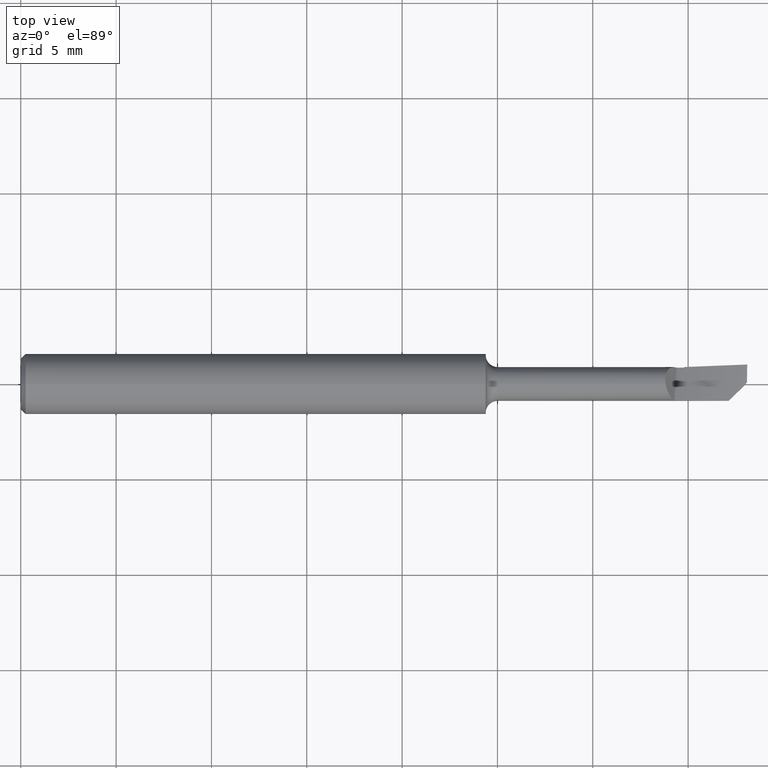
[diagram: clean part render]
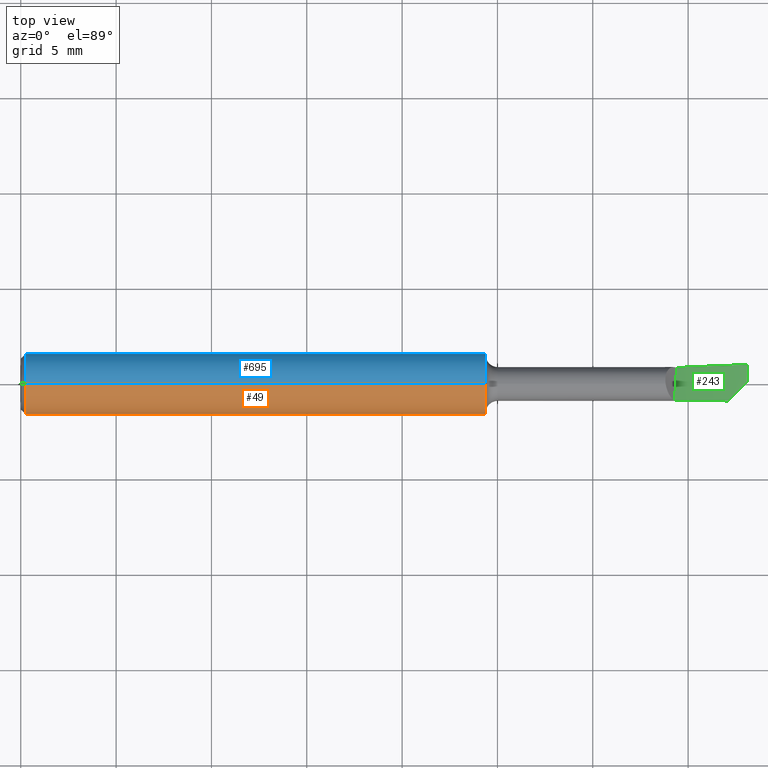
[diagram: same view with three faces highlighted in distinct colors, each labeled with its STEP entity id]
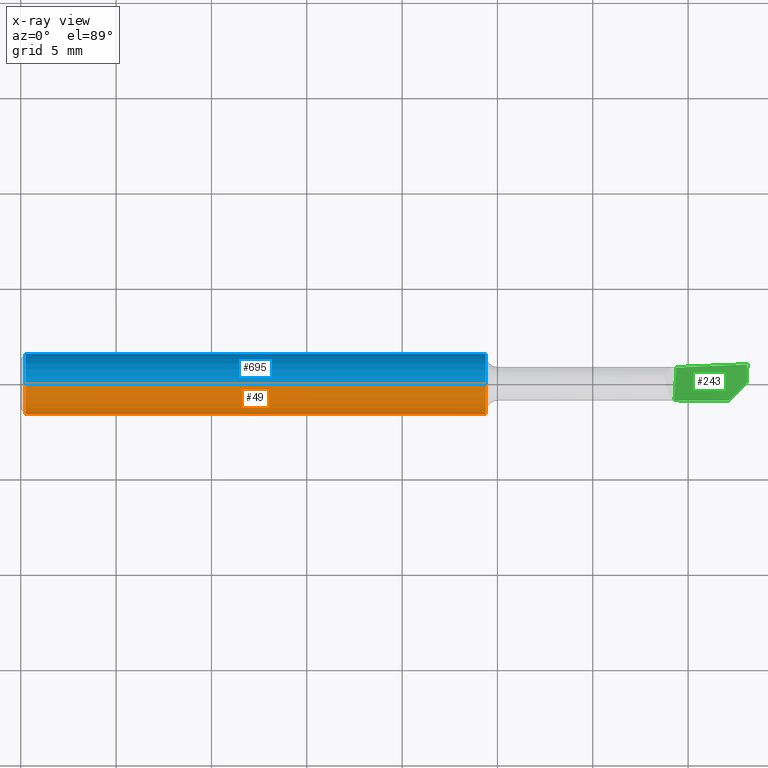
[diagram: x-ray of the same camera — body ghosted, the three highlighted faces saturated]
A machine part, top view with three faces highlighted in distinct colors.
The next image is the same camera in x-ray (body ghosted, the three faces saturated) — at least one of them is partly hidden behind the body in this view.
Their STEP definitions:

[orange] entity #49 — the highlighted cylindrical surface (edge-blend (fillet) strip) has radius 1.5837 mm, axis along (-1, -0, -0).
#2 = ORIENTED_EDGE ( 'NONE', *, *, #596, .F. ) ;
#15 = CARTESIAN_POINT ( 'NONE',  ( 0.000000000000000000, 0.000000000000000000, 0.06234999999999997489 ) ) ;
#44 = CIRCLE ( 'NONE', #525, 0.06235000000000000264 ) ;
#49 = ADVANCED_FACE ( 'NONE', ( #251 ), #247, .T. ) ;
#64 = DIRECTION ( 'NONE',  ( -1.000000000000000000, -0.000000000000000000, -0.000000000000000000 ) ) ;
#67 = VERTEX_POINT ( 'NONE', #658 ) ;
#99 = DIRECTION ( 'NONE',  ( -1.000000000000000000, -0.000000000000000000, -0.000000000000000000 ) ) ;
#110 = CIRCLE ( 'NONE', #340, 0.06234999999999997489 ) ;
#115 = LINE ( 'NONE', #15, #554 ) ;
#156 = DIRECTION ( 'NONE',  ( 0.000000000000000000, 0.000000000000000000, -1.000000000000000000 ) ) ;
#173 = DIRECTION ( 'NONE',  ( -1.000000000000000000, -0.000000000000000000, -0.000000000000000000 ) ) ;
#214 = DIRECTION ( 'NONE',  ( 1.000000000000000000, 0.000000000000000000, 0.000000000000000000 ) ) ;
#219 = AXIS2_PLACEMENT_3D ( 'NONE', #294, #361, #349 ) ;
#228 = VERTEX_POINT ( 'NONE', #439 ) ;
#234 = CARTESIAN_POINT ( 'NONE',  ( 0.9600000000000004086, 0.000000000000000000, 0.06234999999999997489 ) ) ;
#247 = CYLINDRICAL_SURFACE ( 'NONE', #219, 0.06234999999999997489 ) ;
#251 = FACE_OUTER_BOUND ( 'NONE', #583, .T. ) ;
#294 = CARTESIAN_POINT ( 'NONE',  ( 0.000000000000000000, 0.000000000000000000, 0.000000000000000000 ) ) ;
#298 = DIRECTION ( 'NONE',  ( 0.000000000000000000, 0.000000000000000000, 1.000000000000000000 ) ) ;
#307 = CARTESIAN_POINT ( 'NONE',  ( 0.9600000000000004086, 7.635672792683743590E-18, -0.06234999999999997489 ) ) ;
#313 = ORIENTED_EDGE ( 'NONE', *, *, #380, .F. ) ;
#340 = AXIS2_PLACEMENT_3D ( 'NONE', #576, #214, #156 ) ;
#349 = DIRECTION ( 'NONE',  ( 0.000000000000000000, 0.000000000000000000, 1.000000000000000000 ) ) ;
#361 = DIRECTION ( 'NONE',  ( -1.000000000000000000, -0.000000000000000000, -0.000000000000000000 ) ) ;
#372 = ORIENTED_EDGE ( 'NONE', *, *, #492, .T. ) ;
#380 = EDGE_CURVE ( 'NONE', #522, #646, #110, .T. ) ;
#439 = CARTESIAN_POINT ( 'NONE',  ( 0.01000000000000000021, 0.000000000000000000, 0.06235000000000000264 ) ) ;
#464 = CARTESIAN_POINT ( 'NONE',  ( 0.01000000000000000021, 0.000000000000000000, 0.000000000000000000 ) ) ;
#470 = EDGE_CURVE ( 'NONE', #67, #228, #44, .T. ) ;
#492 = EDGE_CURVE ( 'NONE', #522, #228, #115, .T. ) ;
#522 = VERTEX_POINT ( 'NONE', #234 ) ;
#525 = AXIS2_PLACEMENT_3D ( 'NONE', #464, #64, #298 ) ;
#554 = VECTOR ( 'NONE', #173, 39.37007874015748143 ) ;
#574 = ORIENTED_EDGE ( 'NONE', *, *, #470, .F. ) ;
#576 = CARTESIAN_POINT ( 'NONE',  ( 0.9600000000000004086, 0.000000000000000000, 0.000000000000000000 ) ) ;
#583 = EDGE_LOOP ( 'NONE', ( #2, #313, #372, #574 ) ) ;
#589 = VECTOR ( 'NONE', #99, 39.37007874015748143 ) ;
#596 = EDGE_CURVE ( 'NONE', #646, #67, #694, .T. ) ;
#626 = CARTESIAN_POINT ( 'NONE',  ( 0.000000000000000000, 7.635672792683743590E-18, -0.06234999999999997489 ) ) ;
#646 = VERTEX_POINT ( 'NONE', #307 ) ;
#658 = CARTESIAN_POINT ( 'NONE',  ( 0.01000000000000000021, 7.635672792683748212E-18, -0.06235000000000000264 ) ) ;
#694 = LINE ( 'NONE', #626, #589 ) ;

[blue] entity #695 — the highlighted cylindrical surface (edge-blend (fillet) strip) has radius 1.5837 mm, axis along (-1, -0, -0).
#3 = EDGE_CURVE ( 'NONE', #228, #67, #132, .T. ) ;
#15 = CARTESIAN_POINT ( 'NONE',  ( 0.000000000000000000, 0.000000000000000000, 0.06234999999999997489 ) ) ;
#22 = CYLINDRICAL_SURFACE ( 'NONE', #134, 0.06234999999999997489 ) ;
#24 = DIRECTION ( 'NONE',  ( -1.000000000000000000, -0.000000000000000000, -0.000000000000000000 ) ) ;
#33 = AXIS2_PLACEMENT_3D ( 'NONE', #645, #538, #417 ) ;
#67 = VERTEX_POINT ( 'NONE', #658 ) ;
#99 = DIRECTION ( 'NONE',  ( -1.000000000000000000, -0.000000000000000000, -0.000000000000000000 ) ) ;
#115 = LINE ( 'NONE', #15, #554 ) ;
#124 = DIRECTION ( 'NONE',  ( 0.000000000000000000, 0.000000000000000000, 1.000000000000000000 ) ) ;
#132 = CIRCLE ( 'NONE', #463, 0.06235000000000000264 ) ;
#134 = AXIS2_PLACEMENT_3D ( 'NONE', #428, #483, #124 ) ;
#173 = DIRECTION ( 'NONE',  ( -1.000000000000000000, -0.000000000000000000, -0.000000000000000000 ) ) ;
#186 = CARTESIAN_POINT ( 'NONE',  ( 0.01000000000000000021, 0.000000000000000000, 0.000000000000000000 ) ) ;
#199 = ORIENTED_EDGE ( 'NONE', *, *, #3, .F. ) ;
#212 = ORIENTED_EDGE ( 'NONE', *, *, #596, .T. ) ;
#228 = VERTEX_POINT ( 'NONE', #439 ) ;
#234 = CARTESIAN_POINT ( 'NONE',  ( 0.9600000000000004086, 0.000000000000000000, 0.06234999999999997489 ) ) ;
#239 = FACE_OUTER_BOUND ( 'NONE', #738, .T. ) ;
#307 = CARTESIAN_POINT ( 'NONE',  ( 0.9600000000000004086, 7.635672792683743590E-18, -0.06234999999999997489 ) ) ;
#350 = CIRCLE ( 'NONE', #33, 0.06234999999999997489 ) ;
#417 = DIRECTION ( 'NONE',  ( 0.000000000000000000, 0.000000000000000000, -1.000000000000000000 ) ) ;
#421 = DIRECTION ( 'NONE',  ( 0.000000000000000000, 0.000000000000000000, 1.000000000000000000 ) ) ;
#428 = CARTESIAN_POINT ( 'NONE',  ( 0.000000000000000000, 0.000000000000000000, 0.000000000000000000 ) ) ;
#439 = CARTESIAN_POINT ( 'NONE',  ( 0.01000000000000000021, 0.000000000000000000, 0.06235000000000000264 ) ) ;
#444 = EDGE_CURVE ( 'NONE', #646, #522, #350, .T. ) ;
#463 = AXIS2_PLACEMENT_3D ( 'NONE', #186, #24, #421 ) ;
#483 = DIRECTION ( 'NONE',  ( -1.000000000000000000, -0.000000000000000000, -0.000000000000000000 ) ) ;
#486 = ORIENTED_EDGE ( 'NONE', *, *, #492, .F. ) ;
#492 = EDGE_CURVE ( 'NONE', #522, #228, #115, .T. ) ;
#522 = VERTEX_POINT ( 'NONE', #234 ) ;
#538 = DIRECTION ( 'NONE',  ( 1.000000000000000000, 0.000000000000000000, 0.000000000000000000 ) ) ;
#553 = ORIENTED_EDGE ( 'NONE', *, *, #444, .F. ) ;
#554 = VECTOR ( 'NONE', #173, 39.37007874015748143 ) ;
#589 = VECTOR ( 'NONE', #99, 39.37007874015748143 ) ;
#596 = EDGE_CURVE ( 'NONE', #646, #67, #694, .T. ) ;
#626 = CARTESIAN_POINT ( 'NONE',  ( 0.000000000000000000, 7.635672792683743590E-18, -0.06234999999999997489 ) ) ;
#645 = CARTESIAN_POINT ( 'NONE',  ( 0.9600000000000004086, 0.000000000000000000, 0.000000000000000000 ) ) ;
#646 = VERTEX_POINT ( 'NONE', #307 ) ;
#658 = CARTESIAN_POINT ( 'NONE',  ( 0.01000000000000000021, 7.635672792683748212E-18, -0.06235000000000000264 ) ) ;
#694 = LINE ( 'NONE', #626, #589 ) ;
#695 = ADVANCED_FACE ( 'NONE', ( #239 ), #22, .T. ) ;
#738 = EDGE_LOOP ( 'NONE', ( #553, #212, #199, #486 ) ) ;

[green] entity #243 — the highlighted face is a freeform B-spline surface patch.
#1 = CARTESIAN_POINT ( 'NONE',  ( 1.030555555555556779, 0.08733709819635533667, -0.07154979553626174271 ) ) ;
#4 = CARTESIAN_POINT ( 'NONE',  ( 1.499593452604395916, 0.01547239693689903516, -0.001549944727832604664 ) ) ;
#21 =( BOUNDED_CURVE ( )  B_SPLINE_CURVE ( 2, ( #159, #433, #676 ),
 .UNSPECIFIED., .F., .F. ) 
 B_SPLINE_CURVE_WITH_KNOTS ( ( 3, 3 ),
 ( 0.08301568989664878662, 0.3192027755319414850 ),
 .UNSPECIFIED. ) 
 CURVE ( )  GEOMETRIC_REPRESENTATION_ITEM ( )  RATIONAL_B_SPLINE_CURVE ( ( 0.9831666040570180565, 0.9771742139515711134, 0.9796576210879086588 ) ) 
 REPRESENTATION_ITEM ( '' )  );
#23 = CARTESIAN_POINT ( 'NONE',  ( 1.369999999999999885, 0.03408878458359804881, -0.007934403922984695212 ) ) ;
#28 = CARTESIAN_POINT ( 'NONE',  ( 1.382638888888889195, -0.1101294798252469981, 0.03351111324270104191 ) ) ;
#32 = CARTESIAN_POINT ( 'NONE',  ( 1.500000000000000000, 0.03809952085550589312, -0.005958615904867708979 ) ) ;
#39 = CARTESIAN_POINT ( 'NONE',  ( 1.354108048174081924, 0.03386716557508867576, -0.008832615462564030739 ) ) ;
#45 = CARTESIAN_POINT ( 'NONE',  ( 1.349861253357378610, -0.03400066440094470094, 0.008303903918900398112 ) ) ;
#48 = CARTESIAN_POINT ( 'NONE',  ( 1.354108048174081924, 0.03386716557508867576, -0.008832615462564030739 ) ) ;
#52 = CARTESIAN_POINT ( 'NONE',  ( 1.466661693175757009, 0.03913291383499682696, -0.002304768244400256551 ) ) ;
#81 = CARTESIAN_POINT ( 'NONE',  ( 1.265277777777778390, -0.03747963110350861771, 0.009075012135846723116 ) ) ;
#88 = B_SPLINE_CURVE_WITH_KNOTS ( 'NONE', 3,
 ( #48, #327, #569, #45 ),
 .UNSPECIFIED., .F., .F.,
 ( 4, 4 ),
 ( 0.000000000000000000, 1.000000000000000000 ),
 .UNSPECIFIED. ) ;
#91 = ORIENTED_EDGE ( 'NONE', *, *, #287, .F. ) ;
#109 = ORIENTED_EDGE ( 'NONE', *, *, #670, .F. ) ;
#114 = ORIENTED_EDGE ( 'NONE', *, *, #236, .F. ) ;
#138 = CARTESIAN_POINT ( 'NONE',  ( 1.030555555555556779, -0.07154979553626167332, 0.08733709819635514238 ) ) ;
#159 = CARTESIAN_POINT ( 'NONE',  ( 1.461448099694315106, -0.03494965605692109539, 0.001876577070870324082 ) ) ;
#167 = CARTESIAN_POINT ( 'NONE',  ( 1.396666723524801146, 0.03636083483186582782, -0.006624574707342097482 ) ) ;
#180 = ORIENTED_EDGE ( 'NONE', *, *, #578, .F. ) ;
#183 = VERTEX_POINT ( 'NONE', #664 ) ;
#189 = CARTESIAN_POINT ( 'NONE',  ( 1.486742158958402671, -0.009655596792833632744, -0.001749392622931704487 ) ) ;
#202 = CARTESIAN_POINT ( 'NONE',  ( 1.370000000000000329, 0.03517872208053091782, -0.008094904954636267594 ) ) ;
#218 = VERTEX_POINT ( 'NONE', #490 ) ;
#221 = CARTESIAN_POINT ( 'NONE',  ( 1.474065921709957649, -0.02233183404127855182, -0.0005823287045652036096 ) ) ;
#224 =( BOUNDED_SURFACE ( )  B_SPLINE_SURFACE ( 3, 2, ( 
 ( #547, #28, #254, #668, #138 ),
 ( #371, #608, #81, #312, #551 ),
 ( #32, #455, #638, #749, #629 ),
 ( #579, #335, #634, #510, #1 ) ),
 .UNSPECIFIED., .F., .F., .T. ) 
 B_SPLINE_SURFACE_WITH_KNOTS ( ( 4, 4 ),
 ( 3, 2, 3 ),
 ( 0.000000000000000000, 1.000000000000000000 ),
 ( 0.000000000000000000, 0.5000000000000000000, 1.000000000000000000 ),
 .UNSPECIFIED. ) 
 GEOMETRIC_REPRESENTATION_ITEM ( )  RATIONAL_B_SPLINE_SURFACE ( (
 ( 1.000000000000000000, 0.9807852804032304306, 1.000000000000000000, 0.9807852804032304306, 1.000000000000000000),
 ( 0.9829519941216796619, 0.9640648471775461470, 0.9829519941216796619, 0.9640648471775461470, 0.9829519941216796619),
 ( 0.9829519941216796619, 0.9640648471775461470, 0.9829519941216796619, 0.9640648471775461470, 0.9829519941216796619),
 ( 1.000000000000000000, 0.9807852804032304306, 1.000000000000000000, 0.9807852804032304306, 1.000000000000000000) ) ) 
 REPRESENTATION_ITEM ( '' )  SURFACE ( )  );
#236 = EDGE_CURVE ( 'NONE', #324, #386, #280, .T. ) ;
#243 = ADVANCED_FACE ( 'NONE', ( #500 ), #224, .T. ) ;
#254 = CARTESIAN_POINT ( 'NONE',  ( 1.265277777777778390, -0.09952585216190767969, 0.05330803611170396167 ) ) ;
#263 = B_SPLINE_CURVE_WITH_KNOTS ( 'NONE', 3,
 ( #688, #696, #52, #344, #288, #513, #701, #167, #402, #582 ),
 .UNSPECIFIED., .F., .F.,
 ( 4, 3, 3, 4 ),
 ( 8.066190078706008124E-21, 0.001273923518814318485, 0.002292415743805619865, 0.003310949389055610308 ),
 .UNSPECIFIED. ) ;
#264 = CARTESIAN_POINT ( 'NONE',  ( 1.369999999999999885, 0.03408878458359804881, -0.007934403922984695212 ) ) ;
#266 = B_SPLINE_CURVE_WITH_KNOTS ( 'NONE', 3,
 ( #721, #189, #221, #454 ),
 .UNSPECIFIED., .F., .F.,
 ( 4, 4 ),
 ( 1.873122459272024966E-05, 0.001387652073038749814 ),
 .UNSPECIFIED. ) ;
#269 = EDGE_LOOP ( 'NONE', ( #91, #678, #180, #114, #724, #705, #109 ) ) ;
#279 = CARTESIAN_POINT ( 'NONE',  ( 1.369999999999999885, 0.03408878458359804881, -0.007934403922984695212 ) ) ;
#280 =( BOUNDED_CURVE ( )  B_SPLINE_CURVE ( 2, ( #39, #557, #264 ),
 .UNSPECIFIED., .F., .F. ) 
 B_SPLINE_CURVE_WITH_KNOTS ( ( 3, 3 ),
 ( 0.6897742532983571762, 0.7233326396390371560 ),
 .UNSPECIFIED. ) 
 CURVE ( )  GEOMETRIC_REPRESENTATION_ITEM ( )  RATIONAL_B_SPLINE_CURVE ( ( 0.9794810860655851492, 0.9791740060690131697, 0.9790380341072407733 ) ) 
 REPRESENTATION_ITEM ( '' )  );
#283 = CARTESIAN_POINT ( 'NONE',  ( 1.354108048174081924, 0.03386716557508867576, -0.008832615462564030739 ) ) ;
#285 =( BOUNDED_CURVE ( )  B_SPLINE_CURVE ( 3, ( #23, #449, #494, #202 ),
 .UNSPECIFIED., .F., .T. ) 
 B_SPLINE_CURVE_WITH_KNOTS ( ( 4, 4 ),
 ( 0.001949181480983788956, 0.001977093532277217607 ),
 .UNSPECIFIED. ) 
 CURVE ( )  GEOMETRIC_REPRESENTATION_ITEM ( )  RATIONAL_B_SPLINE_CURVE ( ( 0.9790380341072471015, 0.9790632316668498314, 0.9790888258379936149, 0.9791148166206784520 ) ) 
 REPRESENTATION_ITEM ( '' )  );
#287 = EDGE_CURVE ( 'NONE', #218, #384, #387, .T. ) ;
#288 = CARTESIAN_POINT ( 'NONE',  ( 1.436660461414476231, 0.03800200479332555697, -0.004230669184156183628 ) ) ;
#312 = CARTESIAN_POINT ( 'NONE',  ( 1.147916666666667584, -0.03567449895556822070, 0.01653017428716188966 ) ) ;
#321 = EDGE_CURVE ( 'NONE', #218, #693, #263, .T. ) ;
#324 = VERTEX_POINT ( 'NONE', #283 ) ;
#327 = CARTESIAN_POINT ( 'NONE',  ( 1.352702047875786517, 0.01086592668248290497, -0.004878510784421322133 ) ) ;
#332 = CARTESIAN_POINT ( 'NONE',  ( 1.500000000000000222, 0.04024999999999999412, 0.000000000000000000 ) ) ;
#335 = CARTESIAN_POINT ( 'NONE',  ( 1.382638888888889195, 0.1145705201747526103, -0.01118449570750796457 ) ) ;
#338 = CARTESIAN_POINT ( 'NONE',  ( 1.499477198303386771, 0.003079442552149252044, -0.001615932808704087465 ) ) ;
#344 = CARTESIAN_POINT ( 'NONE',  ( 1.449989669630438849, 0.03850445489969771262, -0.003375013161977272799 ) ) ;
#352 = EDGE_CURVE ( 'NONE', #324, #570, #88, .T. ) ;
#371 = CARTESIAN_POINT ( 'NONE',  ( 1.500000000000000000, -0.03809952085550569190, -0.005958615904867730663 ) ) ;
#384 = VERTEX_POINT ( 'NONE', #391 ) ;
#386 = VERTEX_POINT ( 'NONE', #279 ) ;
#387 = B_SPLINE_CURVE_WITH_KNOTS ( 'NONE', 3,
 ( #332, #400, #4, #338 ),
 .UNSPECIFIED., .F., .F.,
 ( 4, 4 ),
 ( 2.038322754542619080E-17, 0.0009443978812286317644 ),
 .UNSPECIFIED. ) ;
#391 = CARTESIAN_POINT ( 'NONE',  ( 1.499477198303386771, 0.003079442552149252044, -0.001615932808704087465 ) ) ;
#400 = CARTESIAN_POINT ( 'NONE',  ( 1.499767103822349013, 0.02786261215107890474, -0.001016319388732455200 ) ) ;
#402 = CARTESIAN_POINT ( 'NONE',  ( 1.383333748005017183, 0.03578078092830985768, -0.007376758440280316298 ) ) ;
#433 = CARTESIAN_POINT ( 'NONE',  ( 1.405854669175920391, -0.03477472758508969725, 0.005134471468053118659 ) ) ;
#449 = CARTESIAN_POINT ( 'NONE',  ( 1.370000000000000329, 0.03445204281607999047, -0.007988305219034576299 ) ) ;
#454 = CARTESIAN_POINT ( 'NONE',  ( 1.461448099694315106, -0.03494965605692109539, 0.001876577070870324082 ) ) ;
#455 = CARTESIAN_POINT ( 'NONE',  ( 1.382638888888889417, 0.03691427845956257031, -0.01353708179426704045 ) ) ;
#490 = CARTESIAN_POINT ( 'NONE',  ( 1.500000000000000222, 0.04024999999999999412, 0.000000000000000000 ) ) ;
#494 = CARTESIAN_POINT ( 'NONE',  ( 1.370000000000000329, 0.03481535546364707828, -0.008041805574109175958 ) ) ;
#500 = FACE_OUTER_BOUND ( 'NONE', #269, .T. ) ;
#510 = CARTESIAN_POINT ( 'NONE',  ( 1.147916666666667584, 0.1015692374120036462, -0.05417736657395505473 ) ) ;
#513 = CARTESIAN_POINT ( 'NONE',  ( 1.423330012478480677, 0.03747144258056701871, -0.005051535428668099507 ) ) ;
#547 = CARTESIAN_POINT ( 'NONE',  ( 1.500000000000000222, -0.1123499999999997279, 0.01116330876759652306 ) ) ;
#551 = CARTESIAN_POINT ( 'NONE',  ( 1.030555555555556557, -0.03115380726970435818, 0.02272705184406837234 ) ) ;
#557 = CARTESIAN_POINT ( 'NONE',  ( 1.362050427833697563, 0.03398391115976232002, -0.008384974323531014379 ) ) ;
#569 = CARTESIAN_POINT ( 'NONE',  ( 1.351296441970193163, -0.01187945877796104180, 0.0008640750039218874018 ) ) ;
#570 = VERTEX_POINT ( 'NONE', #729 ) ;
#578 = EDGE_CURVE ( 'NONE', #386, #693, #285, .T. ) ;
#579 = CARTESIAN_POINT ( 'NONE',  ( 1.500000000000000222, 0.1123499999999998944, 0.01116330876759659071 ) ) ;
#582 = CARTESIAN_POINT ( 'NONE',  ( 1.370000000000000329, 0.03517872208053091782, -0.008094904954636267594 ) ) ;
#584 = EDGE_CURVE ( 'NONE', #183, #570, #21, .T. ) ;
#597 = CARTESIAN_POINT ( 'NONE',  ( 1.370000000000000329, 0.03517872208053091782, -0.008094904954636267594 ) ) ;
#608 = CARTESIAN_POINT ( 'NONE',  ( 1.382638888888889417, -0.03928476325144901471, 0.001619849984531560039 ) ) ;
#629 = CARTESIAN_POINT ( 'NONE',  ( 1.030555555555556557, 0.02272705184406853540, -0.03115380726970447267 ) ) ;
#634 = CARTESIAN_POINT ( 'NONE',  ( 1.265277777777778390, 0.1080698787933781352, -0.03268093114073151312 ) ) ;
#638 = CARTESIAN_POINT ( 'NONE',  ( 1.265277777777778390, 0.03291910393026880460, -0.02008509868905380621 ) ) ;
#664 = CARTESIAN_POINT ( 'NONE',  ( 1.461448099694315106, -0.03494965605692109539, 0.001876577070870324082 ) ) ;
#668 = CARTESIAN_POINT ( 'NONE',  ( 1.147916666666667584, -0.08892222449856836131, 0.07310495898070687448 ) ) ;
#670 = EDGE_CURVE ( 'NONE', #384, #183, #266, .T. ) ;
#676 = CARTESIAN_POINT ( 'NONE',  ( 1.349861253357378610, -0.03400066440094470094, 0.008303903918900399847 ) ) ;
#678 = ORIENTED_EDGE ( 'NONE', *, *, #321, .T. ) ;
#688 = CARTESIAN_POINT ( 'NONE',  ( 1.500000000000000222, 0.04024999999999999412, 0.000000000000000000 ) ) ;
#693 = VERTEX_POINT ( 'NONE', #597 ) ;
#696 = CARTESIAN_POINT ( 'NONE',  ( 1.483332049658383056, 0.03971745247345143115, -0.001180075613657003298 ) ) ;
#701 = CARTESIAN_POINT ( 'NONE',  ( 1.409998641300993283, 0.03691615008997253117, -0.005838038944314691801 ) ) ;
#705 = ORIENTED_EDGE ( 'NONE', *, *, #584, .F. ) ;
#721 = CARTESIAN_POINT ( 'NONE',  ( 1.499477198303386771, 0.003079442552149252044, -0.001615932808704087465 ) ) ;
#724 = ORIENTED_EDGE ( 'NONE', *, *, #352, .T. ) ;
#729 = CARTESIAN_POINT ( 'NONE',  ( 1.349861253357378610, -0.03400066440094470094, 0.008303903918900398112 ) ) ;
#749 = CARTESIAN_POINT ( 'NONE',  ( 1.147916666666667584, 0.02892392940097505277, -0.02663311558384059280 ) ) ;